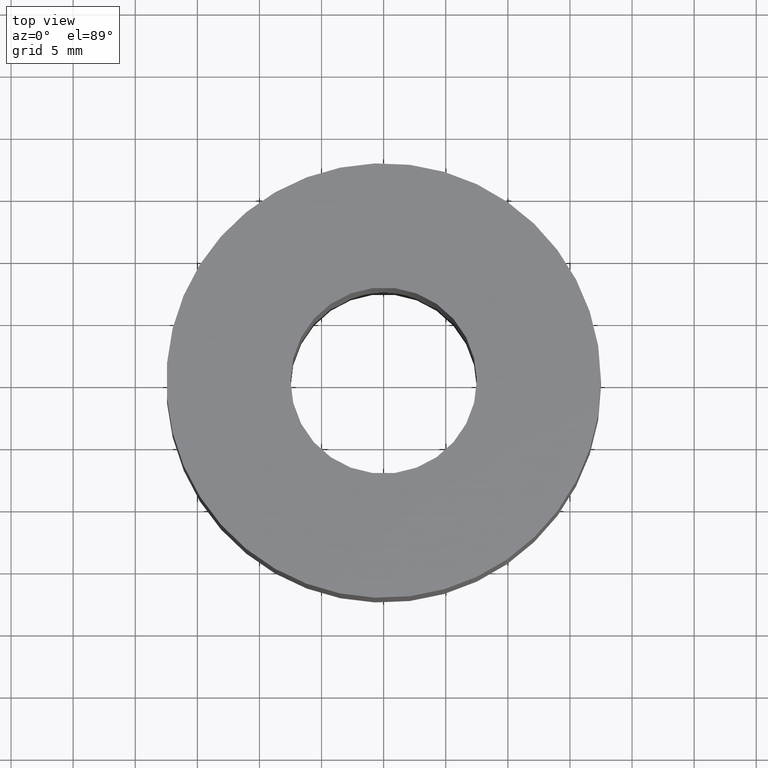
[diagram: clean part render]
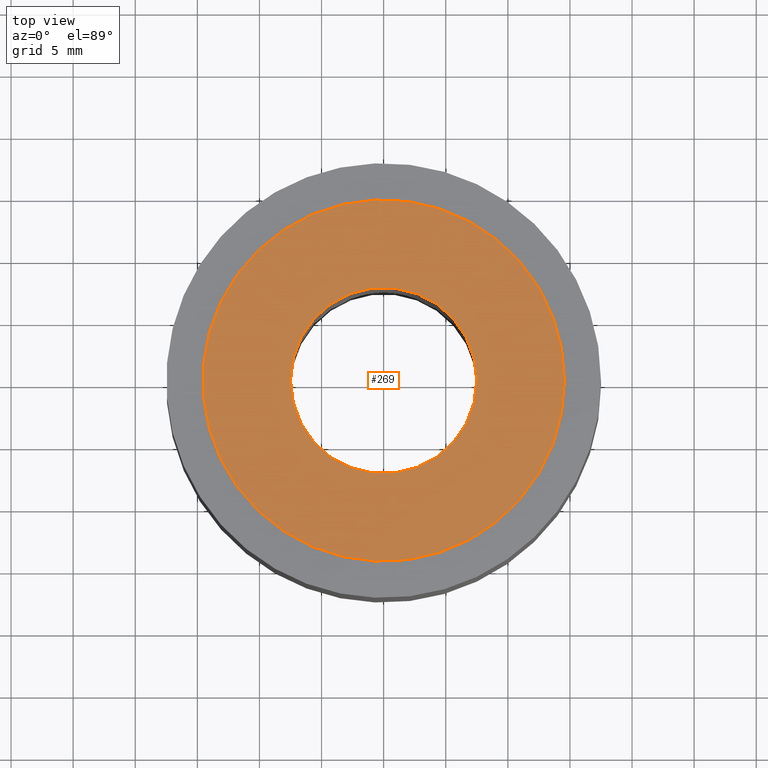
[diagram: same view with one face highlighted and labeled with its STEP entity id]
A machine part, top view. The second image highlights one B-rep face of the part: STEP entity #269.
In plain terms, the highlighted planar face has unit normal (0, 0, 1).
Its self-contained STEP definition (entity closure, byte-faithful):
#269 = ADVANCED_FACE( '', ( #326, #327 ), #328, .T. );
#326 = FACE_BOUND( '', #418, .T. );
#327 = FACE_OUTER_BOUND( '', #419, .T. );
#328 = PLANE( '', #420 );
#418 = EDGE_LOOP( '', ( #522 ) );
#419 = EDGE_LOOP( '', ( #523 ) );
#420 = AXIS2_PLACEMENT_3D( '', #524, #525, #526 );
#522 = ORIENTED_EDGE( '', *, *, #710, .F. );
#523 = ORIENTED_EDGE( '', *, *, #713, .T. );
#524 = CARTESIAN_POINT( '', ( 0.000000000000000, 0.000000000000000, 0.000000000000000 ) );
#525 = DIRECTION( '', ( 0.000000000000000, 0.000000000000000, 1.00000000000000 ) );
#526 = DIRECTION( '', ( 1.00000000000000, 0.000000000000000, 0.000000000000000 ) );
#710 = EDGE_CURVE( '', #774, #774, #775, .T. );
#713 = EDGE_CURVE( '', #780, #780, #781, .T. );
#774 = VERTEX_POINT( '', #1041 );
#775 = CIRCLE( '', #1042, 7.50000000000000 );
#780 = VERTEX_POINT( '', #1104 );
#781 = CIRCLE( '', #1105, 14.5500000000000 );
#1041 = CARTESIAN_POINT( '', ( 7.50000000000000, 0.000000000000000, 0.000000000000000 ) );
#1042 = AXIS2_PLACEMENT_3D( '', #1279, #1280, #1281 );
#1104 = CARTESIAN_POINT( '', ( 14.5500000000000, 0.000000000000000, 0.000000000000000 ) );
#1105 = AXIS2_PLACEMENT_3D( '', #1285, #1286, #1287 );
#1279 = CARTESIAN_POINT( '', ( 0.000000000000000, 0.000000000000000, 0.000000000000000 ) );
#1280 = DIRECTION( '', ( 0.000000000000000, 0.000000000000000, 1.00000000000000 ) );
#1281 = DIRECTION( '', ( 1.00000000000000, 0.000000000000000, 0.000000000000000 ) );
#1285 = CARTESIAN_POINT( '', ( 0.000000000000000, 0.000000000000000, 0.000000000000000 ) );
#1286 = DIRECTION( '', ( 0.000000000000000, 0.000000000000000, 1.00000000000000 ) );
#1287 = DIRECTION( '', ( 1.00000000000000, 0.000000000000000, 0.000000000000000 ) );